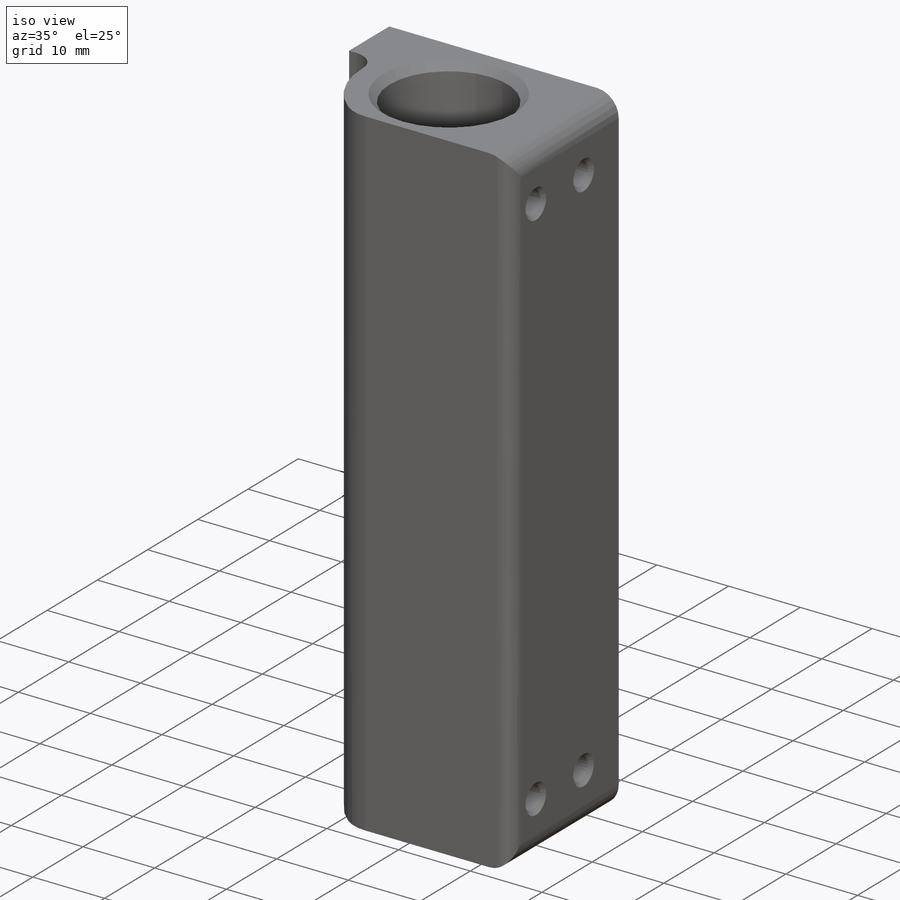
[diagram: iso view]
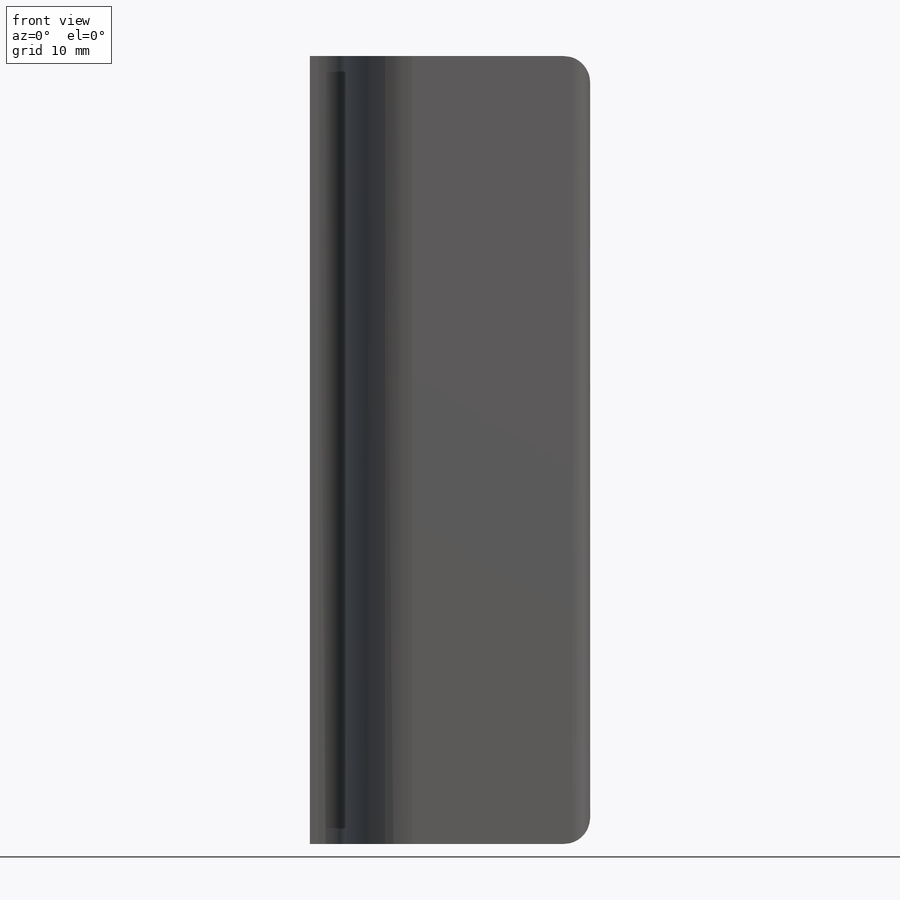
[diagram: front view]
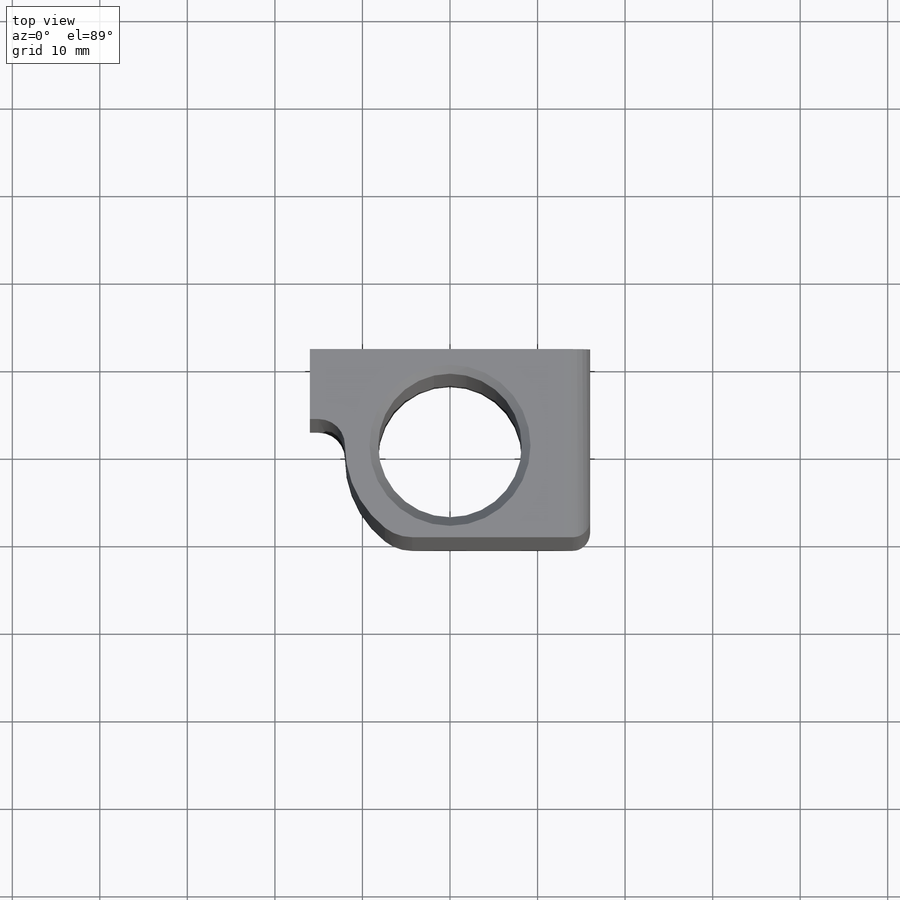
[diagram: top view]
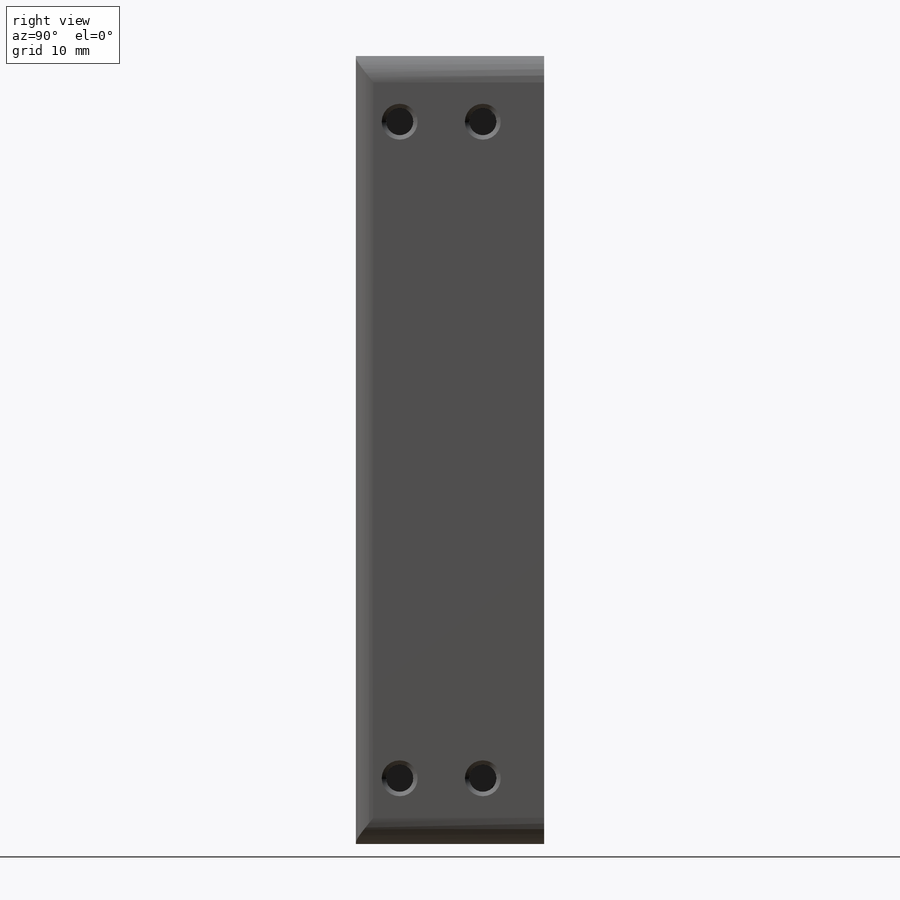
[diagram: right view]
SOLIDWORKS PART (.sldprt)
format: sldprt  version: not decoded by parser v0  size: 220,160 bytes
history: native  units: mm
features: sketch x3, cut_extrude x2, chamfer x2, material x1, extrude x1, fillet x1 (+11 scaffold rows collapsed)
feature tree (21):
  scaffold x11  (default folders/planes/origin — collapsed)
  material  "Material <not specified>"
  sketch  "Sketch1"  dims[c1.D1=16.4mm c1.D2=12.0mm c1.D6=3.0mm c1.D8=5.0mm c2.D6=3.0mm c2.D8=5.0mm c2.D10=2.0mm c2.D3=32.0mm c2.D4=8.0mm c2.D5=11.0mm c2.D7=10.5mm c3.D4=8.0mm c3.D9=16.0mm]
  extrude  "Boss-Extrude1"  Depth=90mm
  sketch  "Sketch2"  dims[D1=5.2mm D2=5.0mm D3=5.0mm]
  cut_extrude  "Cut-Extrude1"  Depth=6mm
  sketch  "Sketch3"  dims[D5=3.1mm D1=7.5mm D2=9.5mm D3=7.5mm D4=7.0mm]
  cut_extrude  "Cut-Extrude2"  Depth=7mm
  chamfer  "Chamfer1"  Distance=0.5mm Angle=45deg
  chamfer  "Chamfer2"  Distance=1mm Angle=45deg
  fillet  "Fillet1"  Radius=3mm
decode coverage: 9 of 9 modeling features carry decoded parameters
note: suppression state not decoded; provenance and decode notes live in map.json
